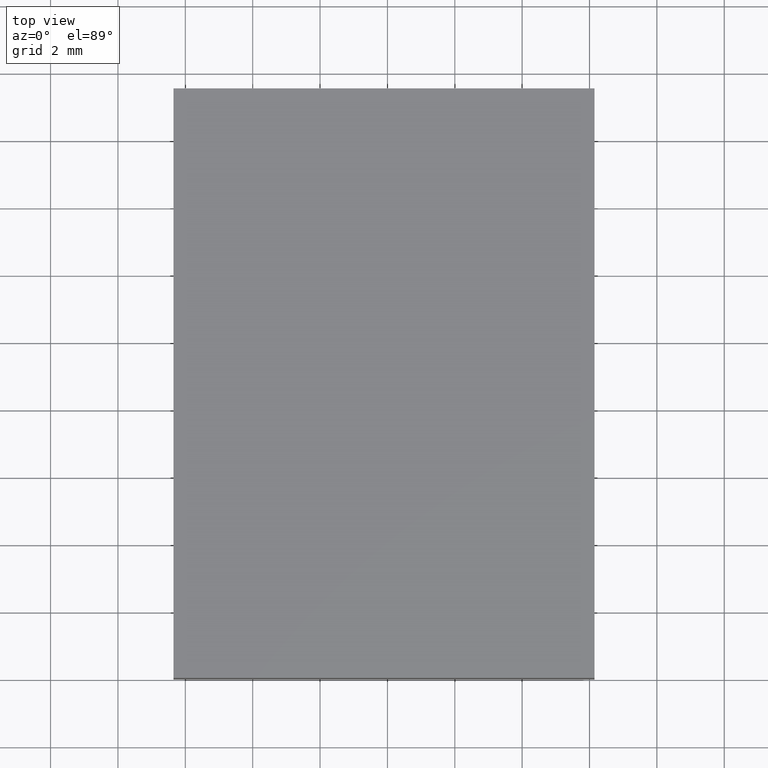
[diagram: clean part render]
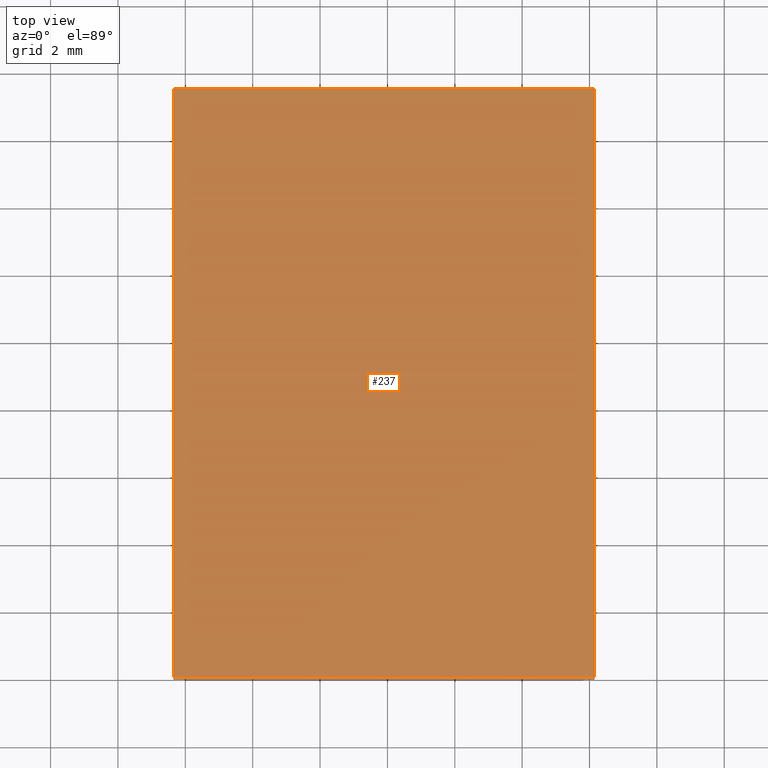
[diagram: same view with one face highlighted and labeled with its STEP entity id]
A machine part, top view. The second image highlights one B-rep face of the part: STEP entity #237.
In plain terms, the highlighted planar face has unit normal (-0, 0, 1).
Its self-contained STEP definition (entity closure, byte-faithful):
#15 = CARTESIAN_POINT ( 'NONE',  ( -6.351626016260162500, 7.520325203252024700, 3.000000000000000000 ) ) ;
#18 = CARTESIAN_POINT ( 'NONE',  ( -6.351626016260160800, -9.979674796747977100, 3.000000000000000000 ) ) ;
#32 = LINE ( 'NONE', #266, #207 ) ;
#48 = LINE ( 'NONE', #15, #293 ) ;
#61 = ORIENTED_EDGE ( 'NONE', *, *, #214, .T. ) ;
#62 = EDGE_CURVE ( 'NONE', #68, #164, #48, .T. ) ;
#65 = CARTESIAN_POINT ( 'NONE',  ( -6.351626016260162500, 7.520325203252024700, 3.000000000000000000 ) ) ;
#68 = VERTEX_POINT ( 'NONE', #65 ) ;
#70 = EDGE_CURVE ( 'NONE', #264, #68, #138, .T. ) ;
#76 = VECTOR ( 'NONE', #247, 1000.000000000000000 ) ;
#85 = ORIENTED_EDGE ( 'NONE', *, *, #140, .T. ) ;
#92 = CARTESIAN_POINT ( 'NONE',  ( -6.351626016260160800, -9.979674796747977100, 3.000000000000000000 ) ) ;
#113 = ORIENTED_EDGE ( 'NONE', *, *, #62, .T. ) ;
#126 = DIRECTION ( 'NONE',  ( -4.956352788505162800E-017, 1.000000000000000000, -0.0000000000000000000 ) ) ;
#138 = LINE ( 'NONE', #234, #186 ) ;
#140 = EDGE_CURVE ( 'NONE', #196, #264, #32, .T. ) ;
#164 = VERTEX_POINT ( 'NONE', #18 ) ;
#168 = DIRECTION ( 'NONE',  ( -0.0000000000000000000, 0.0000000000000000000, 1.000000000000000000 ) ) ;
#186 = VECTOR ( 'NONE', #219, 1000.000000000000000 ) ;
#188 = DIRECTION ( 'NONE',  ( 9.912705577010325500E-017, -1.000000000000000000, 0.0000000000000000000 ) ) ;
#194 = CARTESIAN_POINT ( 'NONE',  ( 6.148373983739840100, -9.979674796747977100, 3.000000000000000000 ) ) ;
#196 = VERTEX_POINT ( 'NONE', #194 ) ;
#207 = VECTOR ( 'NONE', #126, 1000.000000000000000 ) ;
#214 = EDGE_CURVE ( 'NONE', #164, #196, #308, .T. ) ;
#218 = EDGE_LOOP ( 'NONE', ( #113, #61, #85, #250 ) ) ;
#219 = DIRECTION ( 'NONE',  ( -1.000000000000000000, -0.0000000000000000000, -0.0000000000000000000 ) ) ;
#221 = FACE_OUTER_BOUND ( 'NONE', #218, .T. ) ;
#225 = AXIS2_PLACEMENT_3D ( 'NONE', #246, #168, #313 ) ;
#234 = CARTESIAN_POINT ( 'NONE',  ( -6.351626016260162500, 7.520325203252024700, 3.000000000000000000 ) ) ;
#237 = ADVANCED_FACE ( 'NONE', ( #221 ), #267, .T. ) ;
#246 = CARTESIAN_POINT ( 'NONE',  ( 0.0000000000000000000, 0.0000000000000000000, 3.000000000000000000 ) ) ;
#247 = DIRECTION ( 'NONE',  ( 1.000000000000000000, 0.0000000000000000000, 0.0000000000000000000 ) ) ;
#250 = ORIENTED_EDGE ( 'NONE', *, *, #70, .T. ) ;
#264 = VERTEX_POINT ( 'NONE', #268 ) ;
#266 = CARTESIAN_POINT ( 'NONE',  ( 6.148373983739839200, 7.520325203252024700, 3.000000000000000000 ) ) ;
#267 = PLANE ( 'NONE',  #225 ) ;
#268 = CARTESIAN_POINT ( 'NONE',  ( 6.148373983739839200, 7.520325203252024700, 3.000000000000000000 ) ) ;
#293 = VECTOR ( 'NONE', #188, 1000.000000000000000 ) ;
#308 = LINE ( 'NONE', #92, #76 ) ;
#313 = DIRECTION ( 'NONE',  ( 1.000000000000000000, 0.0000000000000000000, 0.0000000000000000000 ) ) ;